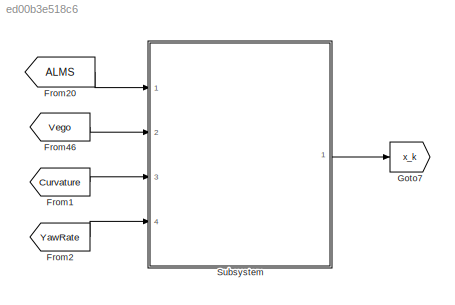
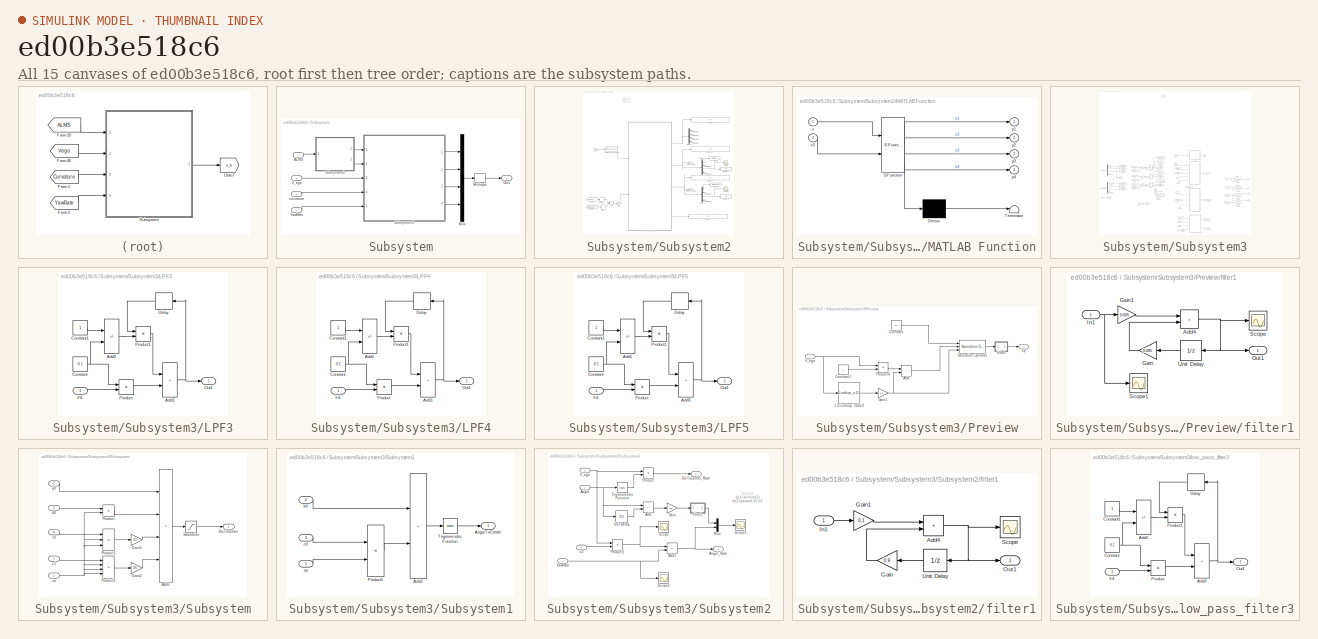
[diagram: thumbnail index - all 15 canvases of the model, root first then tree order]
MODEL slx_ed00b3e518c6
KIND model
CONFIG AbsTol = auto
CONFIG EnableMultiTasking = off
CONFIG FixedStep = auto
CONFIG MaxStep = auto
CONFIG MinStep = auto
CONFIG RelTol = 1e-3
CONFIG SampleTimeConstraint = Unconstrained
CONFIG SolverName = VariableStepAuto
CONFIG StartTime = 0.0
CONFIG StopTime = 10.0
BLOCK [From] From1
  GotoTag = Curvature
BLOCK [From] From2
  GotoTag = YawRate
BLOCK [From] From20
  GotoTag = ALMS
BLOCK [From] From46
  GotoTag = Vego
BLOCK [Goto] Goto7
  GotoTag = x_k
BLOCK [SubSystem] Subsystem
  Ports = [4, 1]
  RequestExecContextInheritance = off
BLOCK [Inport] Subsystem/ALMS
BLOCK [Mux] Subsystem/Mux
  DisplayOption = bar
  Ports = [4, 1]
BLOCK [Outport] Subsystem/Out1
BLOCK [Reshape] Subsystem/Reshape
  OutputDimensionality = Customize
  OutputDimensions = [4,1]
  Ports = [1, 1]
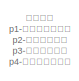
[diagram: Subsystem/Subsystem2 - part 1/2, top left region]
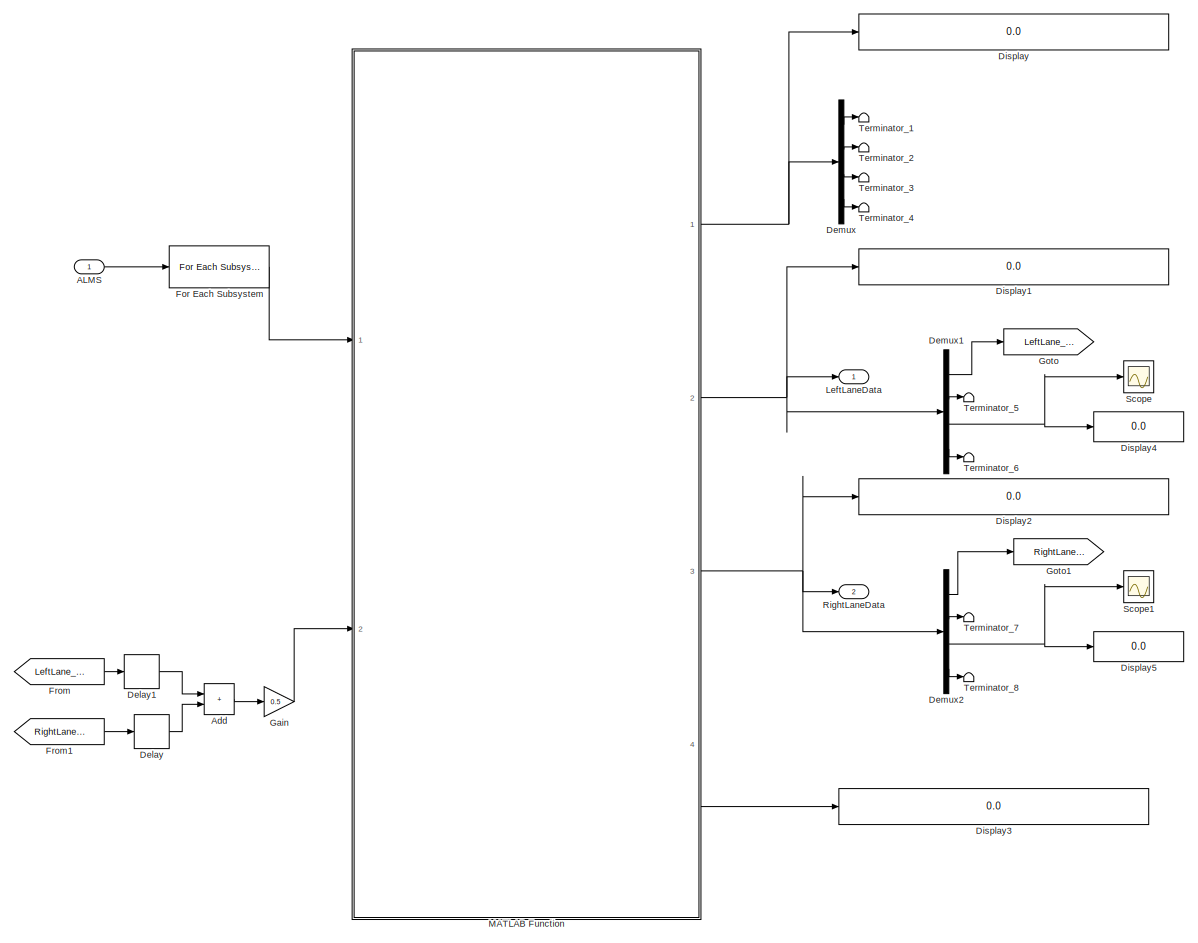
[diagram: Subsystem/Subsystem2 - part 2/2, most of the canvas]
BLOCK [SubSystem] Subsystem/Subsystem2
  Ports = [1, 2]
  RequestExecContextInheritance = off
BLOCK [Inport] Subsystem/Subsystem2/ALMS
  OutDataTypeStr = Bus: PRESCAN_ALMS_MESSAGE
BLOCK [Sum] Subsystem/Subsystem2/Add
  IconShape = rectangular
  Ports = [2, 1]
BLOCK [Delay] Subsystem/Subsystem2/Delay
  DelayLength = 1
  InputPortMap = u0
  Ports = [1, 1]
BLOCK [Delay] Subsystem/Subsystem2/Delay1
  DelayLength = 1
  InputPortMap = u0
  Ports = [1, 1]
BLOCK [Demux] Subsystem/Subsystem2/Demux
  Ports = [1, 4]
BLOCK [Demux] Subsystem/Subsystem2/Demux1
  Ports = [1, 4]
BLOCK [Demux] Subsystem/Subsystem2/Demux2
  Ports = [1, 4]
BLOCK [Display] Subsystem/Subsystem2/Display
  Decimation = 1
  Ports = [1]
BLOCK [Display] Subsystem/Subsystem2/Display1
  Decimation = 1
  Ports = [1]
BLOCK [Display] Subsystem/Subsystem2/Display2
  Decimation = 1
  Ports = [1]
BLOCK [Display] Subsystem/Subsystem2/Display3
  Decimation = 1
  Ports = [1]
BLOCK [Display] Subsystem/Subsystem2/Display4
  Decimation = 1
  Ports = [1]
BLOCK [Display] Subsystem/Subsystem2/Display5
  Decimation = 1
  Ports = [1]
BLOCK [Reference] Subsystem/Subsystem2/For Each Subsystem  REF=PreScanUsefulBlocks/ALMS XY Polynomial Plot/For Each
Subsystem
  Ports = [1, 1]
  SourceBlock = PreScanUsefulBlocks/ALMS XY Polynomial Plot/For Each\nSubsystem
  SourceType = SubSystem
BLOCK [From] Subsystem/Subsystem2/From
  GotoTag = LeftLane_c0
BLOCK [From] Subsystem/Subsystem2/From1
  GotoTag = RightLane_c0
BLOCK [Gain] Subsystem/Subsystem2/Gain
  Gain = 0.5
BLOCK [Goto] Subsystem/Subsystem2/Goto
  GotoTag = LeftLane_c0
BLOCK [Goto] Subsystem/Subsystem2/Goto1
  GotoTag = RightLane_c0
BLOCK [Outport] Subsystem/Subsystem2/LeftLaneData
  VectorParamsAs1DForOutWhenUnconnected = off
BLOCK [SubSystem] Subsystem/Subsystem2/MATLAB Function
  ErrorFcn = Stateflow.Translate.translate
  PermitHierarchicalResolution = ExplicitOnly
  Ports = [2, 4]
  RequestExecContextInheritance = off
  SFBlockType = MATLAB Function
  TreatAsAtomicUnit = on
BLOCK [Demux] Subsystem/Subsystem2/MATLAB Function/ Demux 
  Outputs = 1
  Ports = [1, 1]
BLOCK [S-Function] Subsystem/Subsystem2/MATLAB Function/ SFunction 
  EnableBusSupport = on
  FunctionName = sf_sfun
  PortCounts = [2 5]
  Ports = [2, 5]
  SFcnIsStateOwnerBlock = off
  SFunctionDeploymentMode = off
  Tag = Stateflow S-Function 19
BLOCK [Terminator] Subsystem/Subsystem2/MATLAB Function/ Terminator 
BLOCK [Inport] Subsystem/Subsystem2/MATLAB Function/c0
  Port = 2
BLOCK [Outport] Subsystem/Subsystem2/MATLAB Function/p1
  VectorParamsAs1DForOutWhenUnconnected = off
BLOCK [Outport] Subsystem/Subsystem2/MATLAB Function/p2
  Port = 2
  VectorParamsAs1DForOutWhenUnconnected = off
BLOCK [Outport] Subsystem/Subsystem2/MATLAB Function/p3
  Port = 3
  VectorParamsAs1DForOutWhenUnconnected = off
BLOCK [Outport] Subsystem/Subsystem2/MATLAB Function/p4
  Port = 4
  VectorParamsAs1DForOutWhenUnconnected = off
BLOCK [Inport] Subsystem/Subsystem2/MATLAB Function/u
BLOCK [Outport] Subsystem/Subsystem2/RightLaneData
  Port = 2
  VectorParamsAs1DForOutWhenUnconnected = off
BLOCK [Scope] Subsystem/Subsystem2/Scope
  Floating = off
  NumInputPorts = 1
  Ports = [1]
  ScopeSpecificationString = Simulink.scopes.TimeScopeBlockCfg('CurrentConfiguration', extmgr.ConfigurationSet(extmgr.Configuration('Core','General UI',true),extmgr.Configuration('Core','Source UI',true),extmgr.Configuration('Sources','WiredSimulink',true,'DataLoggingVariableName','ScopeData12'),extmgr.Configuration('Visuals','Time Domain',true,'SerializedDisplays',{struct('MinYLimReal','-0.22477','MaxYLimReal','2.02295','YLa...<+1423ch>
BLOCK [Scope] Subsystem/Subsystem2/Scope1
  Floating = off
  NumInputPorts = 1
  Ports = [1]
  ScopeSpecificationString = Simulink.scopes.TimeScopeBlockCfg('CurrentConfiguration', extmgr.ConfigurationSet(extmgr.Configuration('Core','General UI',true),extmgr.Configuration('Core','Source UI',true),extmgr.Configuration('Sources','WiredSimulink',true,'DataLoggingVariableName','ScopeData13'),extmgr.Configuration('Visuals','Time Domain',true,'SerializedDisplays',{struct('MinYLimReal','-1.98358','MaxYLimReal','0.2204','YLab...<+1391ch>
BLOCK [Terminator] Subsystem/Subsystem2/Terminator_1
BLOCK [Terminator] Subsystem/Subsystem2/Terminator_2
BLOCK [Terminator] Subsystem/Subsystem2/Terminator_3
BLOCK [Terminator] Subsystem/Subsystem2/Terminator_4
BLOCK [Terminator] Subsystem/Subsystem2/Terminator_5
BLOCK [Terminator] Subsystem/Subsystem2/Terminator_6
BLOCK [Terminator] Subsystem/Subsystem2/Terminator_7
BLOCK [Terminator] Subsystem/Subsystem2/Terminator_8
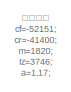
[diagram: Subsystem/Subsystem3 - part 1/4, top center region]
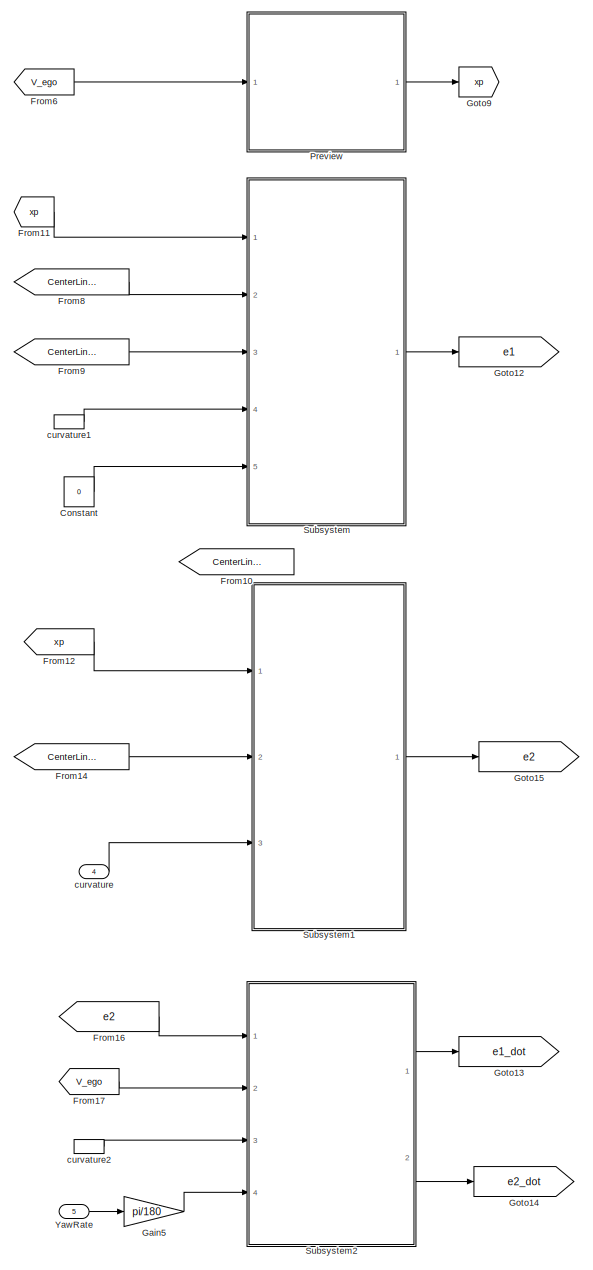
[diagram: Subsystem/Subsystem3 - part 2/4, bottom center region]
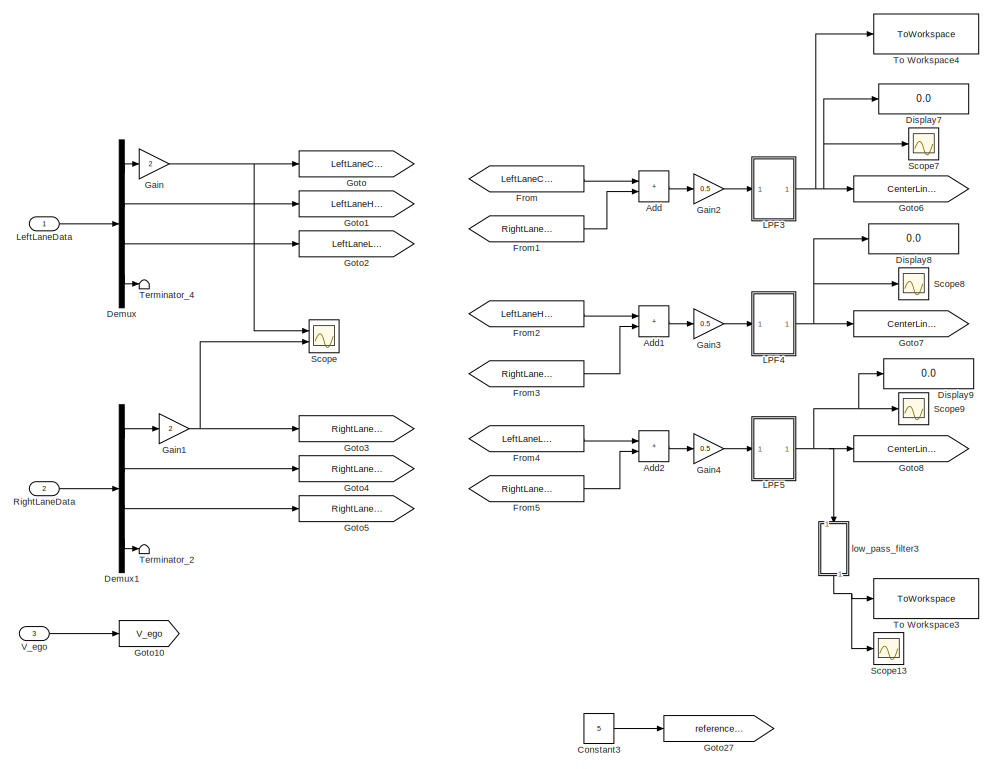
[diagram: Subsystem/Subsystem3 - part 3/4, middle left region]
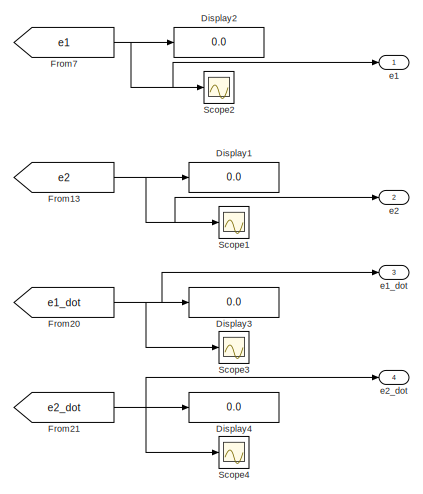
[diagram: Subsystem/Subsystem3 - part 4/4, bottom right region]
BLOCK [SubSystem] Subsystem/Subsystem3
  Ports = [5, 4]
  RequestExecContextInheritance = off
BLOCK [Sum] Subsystem/Subsystem3/Add
  IconShape = rectangular
  Ports = [2, 1]
BLOCK [Sum] Subsystem/Subsystem3/Add1
  IconShape = rectangular
  Ports = [2, 1]
BLOCK [Sum] Subsystem/Subsystem3/Add2
  IconShape = rectangular
  Ports = [2, 1]
BLOCK [Constant] Subsystem/Subsystem3/Constant
  Value = 0
BLOCK [Constant] Subsystem/Subsystem3/Constant3
  Value = 5
BLOCK [Demux] Subsystem/Subsystem3/Demux
  Ports = [1, 4]
BLOCK [Demux] Subsystem/Subsystem3/Demux1
  Ports = [1, 4]
BLOCK [Display] Subsystem/Subsystem3/Display1
  Decimation = 1
  Ports = [1]
BLOCK [Display] Subsystem/Subsystem3/Display2
  Decimation = 1
  Ports = [1]
BLOCK [Display] Subsystem/Subsystem3/Display3
  Decimation = 1
  Ports = [1]
BLOCK [Display] Subsystem/Subsystem3/Display4
  Decimation = 1
  Ports = [1]
BLOCK [Display] Subsystem/Subsystem3/Display7
  Decimation = 1
  Ports = [1]
BLOCK [Display] Subsystem/Subsystem3/Display8
  Decimation = 1
  Ports = [1]
BLOCK [Display] Subsystem/Subsystem3/Display9
  Decimation = 1
  Ports = [1]
BLOCK [From] Subsystem/Subsystem3/From
  GotoTag = LeftLaneCurvature
BLOCK [From] Subsystem/Subsystem3/From1
  GotoTag = RightLaneCurvature
BLOCK [From] Subsystem/Subsystem3/From10
  Commented = on
  GotoTag = CenterLineCurvature
  TagVisibility = global
BLOCK [From] Subsystem/Subsystem3/From11
  GotoTag = xp
BLOCK [From] Subsystem/Subsystem3/From12
  GotoTag = xp
BLOCK [From] Subsystem/Subsystem3/From13
  GotoTag = e2
BLOCK [From] Subsystem/Subsystem3/From14
  GotoTag = CenterLineHeading
BLOCK [From] Subsystem/Subsystem3/From16
  GotoTag = e2
BLOCK [From] Subsystem/Subsystem3/From17
  GotoTag = V_ego
BLOCK [From] Subsystem/Subsystem3/From2
  GotoTag = LeftLaneHeading
BLOCK [From] Subsystem/Subsystem3/From20
  GotoTag = e1_dot
BLOCK [From] Subsystem/Subsystem3/From21
  GotoTag = e2_dot
BLOCK [From] Subsystem/Subsystem3/From3
  GotoTag = RightLaneHeading
BLOCK [From] Subsystem/Subsystem3/From4
  GotoTag = LeftLaneLateralError
BLOCK [From] Subsystem/Subsystem3/From5
  GotoTag = RightLaneLateralError
BLOCK [From] Subsystem/Subsystem3/From6
  GotoTag = V_ego
BLOCK [From] Subsystem/Subsystem3/From7
  GotoTag = e1
BLOCK [From] Subsystem/Subsystem3/From8
  GotoTag = CenterLineLateralError
BLOCK [From] Subsystem/Subsystem3/From9
  GotoTag = CenterLineHeading
BLOCK [Gain] Subsystem/Subsystem3/Gain
  Gain = 2
BLOCK [Gain] Subsystem/Subsystem3/Gain1
  Gain = 2
BLOCK [Gain] Subsystem/Subsystem3/Gain2
  Gain = 0.5
BLOCK [Gain] Subsystem/Subsystem3/Gain3
  Gain = 0.5
BLOCK [Gain] Subsystem/Subsystem3/Gain4
  Gain = 0.5
BLOCK [Gain] Subsystem/Subsystem3/Gain5
  Gain = pi/180
BLOCK [Goto] Subsystem/Subsystem3/Goto
  GotoTag = LeftLaneCurvature
BLOCK [Goto] Subsystem/Subsystem3/Goto1
  GotoTag = LeftLaneHeading
BLOCK [Goto] Subsystem/Subsystem3/Goto10
  GotoTag = V_ego
BLOCK [Goto] Subsystem/Subsystem3/Goto12
  GotoTag = e1
BLOCK [Goto] Subsystem/Subsystem3/Goto13
  GotoTag = e1_dot
BLOCK [Goto] Subsystem/Subsystem3/Goto14
  GotoTag = e2_dot
BLOCK [Goto] Subsystem/Subsystem3/Goto15
  GotoTag = e2
BLOCK [Goto] Subsystem/Subsystem3/Goto2
  GotoTag = LeftLaneLateralError
BLOCK [Goto] Subsystem/Subsystem3/Goto27
  GotoTag = reference_velocity
  TagVisibility = global
BLOCK [Goto] Subsystem/Subsystem3/Goto3
  GotoTag = RightLaneCurvature
BLOCK [Goto] Subsystem/Subsystem3/Goto4
  GotoTag = RightLaneHeading
BLOCK [Goto] Subsystem/Subsystem3/Goto5
  GotoTag = RightLaneLateralError
BLOCK [Goto] Subsystem/Subsystem3/Goto6
  GotoTag = CenterLineCurvature
  TagVisibility = global
BLOCK [Goto] Subsystem/Subsystem3/Goto7
  GotoTag = CenterLineHeading
BLOCK [Goto] Subsystem/Subsystem3/Goto8
  GotoTag = CenterLineLateralError
BLOCK [Goto] Subsystem/Subsystem3/Goto9
  GotoTag = xp
BLOCK [SubSystem] Subsystem/Subsystem3/LPF3
  Ports = [1, 1]
  RequestExecContextInheritance = off
BLOCK [Sum] Subsystem/Subsystem3/LPF3/Add1
  IconShape = rectangular
  Inputs = +-
  Ports = [2, 1]
BLOCK [Sum] Subsystem/Subsystem3/LPF3/Add3
  IconShape = rectangular
  Ports = [2, 1]
BLOCK [Constant] Subsystem/Subsystem3/LPF3/Constant
  Value = 0.1
BLOCK [Constant] Subsystem/Subsystem3/LPF3/Constant1
BLOCK [Delay] Subsystem/Subsystem3/LPF3/Delay
  DelayLength = 1
  InputPortMap = u0
  Ports = [1, 1]
BLOCK [Inport] Subsystem/Subsystem3/LPF3/In1
BLOCK [Outport] Subsystem/Subsystem3/LPF3/Out1
  VectorParamsAs1DForOutWhenUnconnected = off
BLOCK [Product] Subsystem/Subsystem3/LPF3/Product
  Ports = [2, 1]
BLOCK [Product] Subsystem/Subsystem3/LPF3/Product1
  Ports = [2, 1]
BLOCK [SubSystem] Subsystem/Subsystem3/LPF4
  Ports = [1, 1]
  RequestExecContextInheritance = off
BLOCK [Sum] Subsystem/Subsystem3/LPF4/Add1
  IconShape = rectangular
  Inputs = +-
  Ports = [2, 1]
BLOCK [Sum] Subsystem/Subsystem3/LPF4/Add3
  IconShape = rectangular
  Ports = [2, 1]
BLOCK [Constant] Subsystem/Subsystem3/LPF4/Constant
  Value = 0.1
BLOCK [Constant] Subsystem/Subsystem3/LPF4/Constant1
BLOCK [Delay] Subsystem/Subsystem3/LPF4/Delay
  DelayLength = 1
  InputPortMap = u0
  Ports = [1, 1]
BLOCK [Inport] Subsystem/Subsystem3/LPF4/In1
BLOCK [Outport] Subsystem/Subsystem3/LPF4/Out1
  VectorParamsAs1DForOutWhenUnconnected = off
BLOCK [Product] Subsystem/Subsystem3/LPF4/Product
  Ports = [2, 1]
BLOCK [Product] Subsystem/Subsystem3/LPF4/Product1
  Ports = [2, 1]
BLOCK [SubSystem] Subsystem/Subsystem3/LPF5
  Ports = [1, 1]
  RequestExecContextInheritance = off
BLOCK [Sum] Subsystem/Subsystem3/LPF5/Add1
  IconShape = rectangular
  Inputs = +-
  Ports = [2, 1]
BLOCK [Sum] Subsystem/Subsystem3/LPF5/Add3
  IconShape = rectangular
  Ports = [2, 1]
BLOCK [Constant] Subsystem/Subsystem3/LPF5/Constant
  Value = 0.1
BLOCK [Constant] Subsystem/Subsystem3/LPF5/Constant1
BLOCK [Delay] Subsystem/Subsystem3/LPF5/Delay
  DelayLength = 1
  InputPortMap = u0
  Ports = [1, 1]
BLOCK [Inport] Subsystem/Subsystem3/LPF5/In1
BLOCK [Outport] Subsystem/Subsystem3/LPF5/Out1
  VectorParamsAs1DForOutWhenUnconnected = off
BLOCK [Product] Subsystem/Subsystem3/LPF5/Product
  Ports = [2, 1]
BLOCK [Product] Subsystem/Subsystem3/LPF5/Product1
  Ports = [2, 1]
BLOCK [Inport] Subsystem/Subsystem3/LeftLaneData
BLOCK [SubSystem] Subsystem/Subsystem3/Preview
  Ports = [1, 1]
  RequestExecContextInheritance = off
BLOCK [Lookup_n-D] Subsystem/Subsystem3/Preview/1-D Lookup Table2
  BreakpointsForDimension1 = [0,3,5,10,15,20,30,40,50]
  InputPortMap = u0
  InternalRulePriority = Speed
  NumberOfTableDimensions = 1
  Ports = [1, 1]
  RndMeth = Simplest
  Table = [6,6,7,8.5,10.5,12,14,15,15]
BLOCK [Sum] Subsystem/Subsystem3/Preview/Add
  IconShape = rectangular
  Ports = [2, 1]
BLOCK [Constant] Subsystem/Subsystem3/Preview/Constant
  Value = 30
BLOCK [Constant] Subsystem/Subsystem3/Preview/Constant1
BLOCK [Gain] Subsystem/Subsystem3/Preview/Gain1
  Gain = 0.2
BLOCK [Product] Subsystem/Subsystem3/Preview/Product4
  Ports = [2, 1]
BLOCK [Reference] Subsystem/Subsystem3/Preview/Saturation Dynamic  REF=simulink/Discontinuities/Saturation
Dynamic
  Ports = [3, 1]
  SourceBlock = simulink/Discontinuities/Saturation\nDynamic
  SourceProductBaseCode = SL
  SourceType = Saturation Dynamic
BLOCK [Inport] Subsystem/Subsystem3/Preview/V_ego
BLOCK [SubSystem] Subsystem/Subsystem3/Preview/filter1
  Ports = [1, 1]
  RequestExecContextInheritance = off
BLOCK [Sum] Subsystem/Subsystem3/Preview/filter1/Add4
  IconShape = rectangular
  Ports = [2, 1]
BLOCK [Gain] Subsystem/Subsystem3/Preview/filter1/Gain
  Gain = 0.995
BLOCK [Gain] Subsystem/Subsystem3/Preview/filter1/Gain1
  Gain = 0.005
BLOCK [Inport] Subsystem/Subsystem3/Preview/filter1/In1
BLOCK [Outport] Subsystem/Subsystem3/Preview/filter1/Out1
  VectorParamsAs1DForOutWhenUnconnected = off
BLOCK [Scope] Subsystem/Subsystem3/Preview/filter1/Scope
  Floating = off
  NumInputPorts = 1
  Ports = [1]
  ScopeSpecificationString = C++SS(StrPVP('Location','[1, 59, 1921, 1023]'),StrPVP('Open','off'),MxPVP('AxesTitles',54,'struct(''axes1'',''%<SignalLabel>'')'),MxPVP('ScopeGraphics',57,'struct(''FigureColor'',''[0.5 0.5 0.5]'',''AxesColor'',''[0 0 0]'',''AxesTickColor'',''[1 1 1]'',''LineColors'',''[1 1 0;1 0 1;0 1 1;1 0 0;0 1 0;0 0 1]'',''LineStyles'',''-|-|-|-|-|-'',''LineWidths'',''[0.5 0.5 0.5 0.5 0.5 0.5]'',''MarkerStyles...<+315ch>
BLOCK [Scope] Subsystem/Subsystem3/Preview/filter1/Scope1
  Floating = off
  NumInputPorts = 1
  Ports = [1]
  ScopeSpecificationString = C++SS(StrPVP('Location','[1, 59, 1921, 1023]'),StrPVP('Open','off'),MxPVP('AxesTitles',54,'struct(''axes1'',''%<SignalLabel>'')'),MxPVP('ScopeGraphics',57,'struct(''FigureColor'',''[0.5 0.5 0.5]'',''AxesColor'',''[0 0 0]'',''AxesTickColor'',''[1 1 1]'',''LineColors'',''[1 1 0;1 0 1;0 1 1;1 0 0;0 1 0;0 0 1]'',''LineStyles'',''-|-|-|-|-|-'',''LineWidths'',''[0.5 0.5 0.5 0.5 0.5 0.5]'',''MarkerStyles...<+316ch>
BLOCK [UnitDelay] Subsystem/Subsystem3/Preview/filter1/Unit Delay
  HasFrameUpgradeWarning = on
  InitialCondition = 30
  SampleTime = -1
BLOCK [Outport] Subsystem/Subsystem3/Preview/xp
  VectorParamsAs1DForOutWhenUnconnected = off
BLOCK [Inport] Subsystem/Subsystem3/RightLaneData
  Port = 2
BLOCK [Scope] Subsystem/Subsystem3/Scope
  Floating = off
  NumInputPorts = 2
  Ports = [2]
  ScopeSpecificationString = Simulink.scopes.TimeScopeBlockCfg('CurrentConfiguration', extmgr.ConfigurationSet(extmgr.Configuration('Core','General UI',true),extmgr.Configuration('Core','Source UI',true),extmgr.Configuration('Sources','WiredSimulink',true,'DataLoggingVariableName','ScopeData1'),extmgr.Configuration('Visuals','Time Domain',true,'SerializedDisplays',{struct('MinYLimReal','0.000409','MaxYLimReal','0.00049','YLab...<+1446ch>
BLOCK [Scope] Subsystem/Subsystem3/Scope1
  Floating = off
  NumInputPorts = 1
  Ports = [1]
  ScopeSpecificationString = Simulink.scopes.TimeScopeBlockCfg('CurrentConfiguration', extmgr.ConfigurationSet(extmgr.Configuration('Core','General UI',true),extmgr.Configuration('Core','Source UI',true),extmgr.Configuration('Sources','WiredSimulink',true,'DataLoggingVariableName','ScopeData1'),extmgr.Configuration('Visuals','Time Domain',true,'SerializedDisplays',{struct('MinYLimReal','-0.16111','MaxYLimReal','1.44481','YLab...<+1394ch>
BLOCK [Scope] Subsystem/Subsystem3/Scope13
  Floating = off
  NumInputPorts = 1
  Ports = [1]
  ScopeSpecificationString = Simulink.scopes.TimeScopeBlockCfg('CurrentConfiguration', extmgr.ConfigurationSet(extmgr.Configuration('Core','General UI',true),extmgr.Configuration('Core','Source UI',true),extmgr.Configuration('Sources','WiredSimulink',true,'DataLoggingVariableName','ScopeData1'),extmgr.Configuration('Visuals','Time Domain',true,'SerializedDisplays',{struct('MinYLimReal','-0.3319','MaxYLimReal','0.10658','YLabe...<+1450ch>
BLOCK [Scope] Subsystem/Subsystem3/Scope2
  Floating = off
  NumInputPorts = 1
  Ports = [1]
  ScopeSpecificationString = Simulink.scopes.TimeScopeBlockCfg('CurrentConfiguration', extmgr.ConfigurationSet(extmgr.Configuration('Core','General UI',true),extmgr.Configuration('Core','Source UI',true),extmgr.Configuration('Sources','WiredSimulink',true,'DataLoggingVariableName','ScopeData4'),extmgr.Configuration('Visuals','Time Domain',true,'SerializedDisplays',{struct('MinYLimReal','-0.43544','MaxYLimReal','3.93727','YLab...<+1393ch>
BLOCK [Scope] Subsystem/Subsystem3/Scope3
  Floating = off
  NumInputPorts = 1
  Ports = [1]
  ScopeSpecificationString = Simulink.scopes.TimeScopeBlockCfg('CurrentConfiguration', extmgr.ConfigurationSet(extmgr.Configuration('Core','General UI',true),extmgr.Configuration('Core','Source UI',true),extmgr.Configuration('Sources','WiredSimulink',true,'DataLoggingVariableName','ScopeData2'),extmgr.Configuration('Visuals','Time Domain',true,'SerializedDisplays',{struct('MinYLimReal','-0.58339','MaxYLimReal','5.22479','YLab...<+1396ch>
BLOCK [Scope] Subsystem/Subsystem3/Scope4
  Floating = off
  NumInputPorts = 1
  Ports = [1]
  ScopeSpecificationString = Simulink.scopes.TimeScopeBlockCfg('CurrentConfiguration', extmgr.ConfigurationSet(extmgr.Configuration('Core','General UI',true),extmgr.Configuration('Core','Source UI',true),extmgr.Configuration('Sources','WiredSimulink',true,'DataLoggingVariableName','ScopeData3'),extmgr.Configuration('Visuals','Time Domain',true,'SerializedDisplays',{struct('MinYLimReal','-0.10722','MaxYLimReal','0.01151','YLab...<+1396ch>
BLOCK [Scope] Subsystem/Subsystem3/Scope7
  Floating = off
  NumInputPorts = 1
  Ports = [1]
  ScopeSpecificationString = Simulink.scopes.TimeScopeBlockCfg('CurrentConfiguration', extmgr.ConfigurationSet(extmgr.Configuration('Core','General UI',true),extmgr.Configuration('Core','Source UI',true),extmgr.Configuration('Sources','WiredSimulink',true,'DataLoggingVariableName','ScopeData9'),extmgr.Configuration('Visuals','Time Domain',true,'SerializedDisplays',{struct('MinYLimReal','-0.00006','MaxYLimReal','0.00053','YLab...<+1407ch>
BLOCK [Scope] Subsystem/Subsystem3/Scope8
  Floating = off
  NumInputPorts = 1
  Ports = [1]
  ScopeSpecificationString = Simulink.scopes.TimeScopeBlockCfg('CurrentConfiguration', extmgr.ConfigurationSet(extmgr.Configuration('Core','General UI',true),extmgr.Configuration('Core','Source UI',true),extmgr.Configuration('Sources','WiredSimulink',true,'DataLoggingVariableName','ScopeData10'),extmgr.Configuration('Visuals','Time Domain',true,'SerializedDisplays',{struct('MinYLimReal','-0.00403','MaxYLimReal','0.00045','YLa...<+1389ch>
BLOCK [Scope] Subsystem/Subsystem3/Scope9
  Floating = off
  NumInputPorts = 1
  Ports = [1]
  ScopeSpecificationString = Simulink.scopes.TimeScopeBlockCfg('CurrentConfiguration', extmgr.ConfigurationSet(extmgr.Configuration('Core','General UI',true),extmgr.Configuration('Core','Source UI',true),extmgr.Configuration('Sources','WiredSimulink',true,'DataLoggingVariableName','ScopeData11'),extmgr.Configuration('Visuals','Time Domain',true,'SerializedDisplays',{struct('MinYLimReal','-44.9859','MaxYLimReal','8.18613','YLa...<+1389ch>
BLOCK [SubSystem] Subsystem/Subsystem3/Subsystem
  Ports = [5, 1]
  RequestExecContextInheritance = off
BLOCK [Sum] Subsystem/Subsystem3/Subsystem/Add2
  IconShape = rectangular
  Inputs = ++++
  Ports = [4, 1]
BLOCK [Outport] Subsystem/Subsystem3/Subsystem/DisToCenter
  VectorParamsAs1DForOutWhenUnconnected = off
BLOCK [Gain] Subsystem/Subsystem3/Subsystem/Gain1
  Gain = 1/2
BLOCK [Gain] Subsystem/Subsystem3/Subsystem/Gain2
  Gain = 1/6
BLOCK [Product] Subsystem/Subsystem3/Subsystem/Product
  Ports = [2, 1]
BLOCK [Product] Subsystem/Subsystem3/Subsystem/Product1
  Inputs = 3
  Ports = [3, 1]
BLOCK [Product] Subsystem/Subsystem3/Subsystem/Product2
  Inputs = 4
  Ports = [4, 1]
BLOCK [Saturate] Subsystem/Subsystem3/Subsystem/Saturation
  LowerLimit = -3.5
  UpperLimit = 3.5
BLOCK [Inport] Subsystem/Subsystem3/Subsystem/c0
  Port = 4
BLOCK [Inport] Subsystem/Subsystem3/Subsystem/c1
  Port = 5
BLOCK [Inport] Subsystem/Subsystem3/Subsystem/k0
  Port = 3
BLOCK [Inport] Subsystem/Subsystem3/Subsystem/xp
BLOCK [Inport] Subsystem/Subsystem3/Subsystem/y0
  Port = 2
BLOCK [SubSystem] Subsystem/Subsystem3/Subsystem1
  Ports = [3, 1]
  RequestExecContextInheritance = off
BLOCK [Sum] Subsystem/Subsystem3/Subsystem1/Add2
  IconShape = rectangular
  Ports = [2, 1]
BLOCK [Outport] Subsystem/Subsystem3/Subsystem1/AngleToCenter
  VectorParamsAs1DForOutWhenUnconnected = off
BLOCK [Product] Subsystem/Subsystem3/Subsystem1/Product1
  Ports = [2, 1]
BLOCK [Trigonometry] Subsystem/Subsystem3/Subsystem1/Trigonometric Function
  Operator = atan
  Ports = [1, 1]
BLOCK [Inport] Subsystem/Subsystem3/Subsystem1/c0
  Port = 3
BLOCK [Inport] Subsystem/Subsystem3/Subsystem1/k0
  Port = 2
BLOCK [Inport] Subsystem/Subsystem3/Subsystem1/xp
BLOCK [SubSystem] Subsystem/Subsystem3/Subsystem2
  NameLocation = top
  Ports = [4, 2]
  RequestExecContextInheritance = off
BLOCK [Sum] Subsystem/Subsystem3/Subsystem2/Add
  IconShape = rectangular
  Inputs = +-
  Ports = [2, 1]
BLOCK [Sum] Subsystem/Subsystem3/Subsystem2/Add1
  IconShape = rectangular
  Inputs = -+
  Ports = [2, 1]
BLOCK [Outport] Subsystem/Subsystem3/Subsystem2/Angel_Rate
  Port = 2
  VectorParamsAs1DForOutWhenUnconnected = off
BLOCK [Inport] Subsystem/Subsystem3/Subsystem2/Angle
BLOCK [Outport] Subsystem/Subsystem3/Subsystem2/DisToCenter_Rate
  VectorParamsAs1DForOutWhenUnconnected = off
BLOCK [Gain] Subsystem/Subsystem3/Subsystem2/Gain
  Gain = 100
BLOCK [Mux] Subsystem/Subsystem3/Subsystem2/Mux
  DisplayOption = bar
  Inputs = 2
  Ports = [2, 1]
BLOCK [Product] Subsystem/Subsystem3/Subsystem2/Product
  Ports = [2, 1]
BLOCK [Product] Subsystem/Subsystem3/Subsystem2/Product1
  Ports = [2, 1]
BLOCK [Scope] Subsystem/Subsystem3/Subsystem2/Scope
  Floating = off
  NumInputPorts = 1
  Ports = [1]
  ScopeSpecificationString = Simulink.scopes.TimeScopeBlockCfg('CurrentConfiguration', extmgr.ConfigurationSet(extmgr.Configuration('Core','General UI',true),extmgr.Configuration('Core','Source UI',true),extmgr.Configuration('Sources','WiredSimulink',true,'DataLoggingVariableName','ScopeData3'),extmgr.Configuration('Visuals','Time Domain',true,'SerializedDisplays',{struct('MinYLimReal','-0.0000000000000000028','MaxYLimReal','...<+1533ch>
BLOCK [Scope] Subsystem/Subsystem3/Subsystem2/Scope1
  Floating = off
  NumInputPorts = 1
  Ports = [1]
  ScopeSpecificationString = Simulink.scopes.TimeScopeBlockCfg('CurrentConfiguration', extmgr.ConfigurationSet(extmgr.Configuration('Core','General UI',true),extmgr.Configuration('Core','Source UI',true),extmgr.Configuration('Sources','WiredSimulink',true,'DataLoggingVariableName','ScopeData134','DataLoggingSaveFormat','StructureWithTime','DataLoggingDecimation','1','DataLoggingDecimateData',true),extmgr.Configuration('Visual...<+1749ch>
BLOCK [Scope] Subsystem/Subsystem3/Subsystem2/Scope2
  Floating = off
  NumInputPorts = 1
  Ports = [1]
  ScopeSpecificationString = Simulink.scopes.TimeScopeBlockCfg('CurrentConfiguration', extmgr.ConfigurationSet(extmgr.Configuration('Core','General UI',true),extmgr.Configuration('Core','Source UI',true),extmgr.Configuration('Sources','WiredSimulink',true,'DataLoggingVariableName','ScopeData4'),extmgr.Configuration('Visuals','Time Domain',true,'SerializedDisplays',{struct('MinYLimReal','-0.00164','MaxYLimReal','0.00309','YLab...<+1418ch>
BLOCK [Trigonometry] Subsystem/Subsystem3/Subsystem2/Trigonometric Function
  Ports = [1, 1]
BLOCK [UnitDelay] Subsystem/Subsystem3/Subsystem2/Unit Delay
  HasFrameUpgradeWarning = on
  SampleTime = -1
BLOCK [Inport] Subsystem/Subsystem3/Subsystem2/V_ego 
  Port = 2
BLOCK [Inport] Subsystem/Subsystem3/Subsystem2/YawRate
  Port = 4
BLOCK [Inport] Subsystem/Subsystem3/Subsystem2/c0
  Port = 3
BLOCK [SubSystem] Subsystem/Subsystem3/Subsystem2/filter1
  Ports = [1, 1]
  RequestExecContextInheritance = off
BLOCK [Sum] Subsystem/Subsystem3/Subsystem2/filter1/Add4
  IconShape = rectangular
  Ports = [2, 1]
BLOCK [Gain] Subsystem/Subsystem3/Subsystem2/filter1/Gain
  Gain = 0.9
BLOCK [Gain] Subsystem/Subsystem3/Subsystem2/filter1/Gain1
  Gain = 0.1
BLOCK [Inport] Subsystem/Subsystem3/Subsystem2/filter1/In1
BLOCK [Outport] Subsystem/Subsystem3/Subsystem2/filter1/Out1
  VectorParamsAs1DForOutWhenUnconnected = off
BLOCK [Scope] Subsystem/Subsystem3/Subsystem2/filter1/Scope
  Floating = off
  NumInputPorts = 1
  Ports = [1]
  ScopeSpecificationString = C++SS(StrPVP('Location','[1, 59, 1921, 1023]'),StrPVP('Open','off'),MxPVP('AxesTitles',54,'struct(''axes1'',''%<SignalLabel>'')'),MxPVP('ScopeGraphics',57,'struct(''FigureColor'',''[0.5 0.5 0.5]'',''AxesColor'',''[0 0 0]'',''AxesTickColor'',''[1 1 1]'',''LineColors'',''[1 1 0;1 0 1;0 1 1;1 0 0;0 1 0;0 0 1]'',''LineStyles'',''-|-|-|-|-|-'',''LineWidths'',''[0.5 0.5 0.5 0.5 0.5 0.5]'',''MarkerStyles...<+315ch>
BLOCK [UnitDelay] Subsystem/Subsystem3/Subsystem2/filter1/Unit Delay
  HasFrameUpgradeWarning = on
  SampleTime = -1
BLOCK [Terminator] Subsystem/Subsystem3/Terminator_2
BLOCK [Terminator] Subsystem/Subsystem3/Terminator_4
BLOCK [ToWorkspace] Subsystem/Subsystem3/To Workspace3
  FixptAsFi = on
  MaxDataPoints = inf
  Ports = [1]
  SampleTime = -1
  Save2DSignal = 2-D array (concatenate along first dimension)
  VariableName = simulation_Lateral_error
BLOCK [ToWorkspace] Subsystem/Subsystem3/To Workspace4
  FixptAsFi = on
  MaxDataPoints = inf
  Ports = [1]
  SampleTime = -1
  Save2DSignal = 2-D array (concatenate along first dimension)
  VariableName = simulation_Curvature
BLOCK [Inport] Subsystem/Subsystem3/V_ego
  Port = 3
BLOCK [Inport] Subsystem/Subsystem3/YawRate
  Port = 5
BLOCK [Inport] Subsystem/Subsystem3/curvature
  Port = 4
BLOCK [InportShadow] Subsystem/Subsystem3/curvature1
  Port = 4
BLOCK [InportShadow] Subsystem/Subsystem3/curvature2
  Port = 4
BLOCK [Outport] Subsystem/Subsystem3/e1
BLOCK [Outport] Subsystem/Subsystem3/e1_dot
  Port = 3
BLOCK [Outport] Subsystem/Subsystem3/e2
  Port = 2
BLOCK [Outport] Subsystem/Subsystem3/e2_dot
  Port = 4
BLOCK [SubSystem] Subsystem/Subsystem3/low_pass_filter3
  NameLocation = left
  Ports = [1, 1]
  RequestExecContextInheritance = off
BLOCK [Sum] Subsystem/Subsystem3/low_pass_filter3/Add1
  IconShape = rectangular
  Inputs = +-
  Ports = [2, 1]
BLOCK [Sum] Subsystem/Subsystem3/low_pass_filter3/Add3
  IconShape = rectangular
  Ports = [2, 1]
BLOCK [Constant] Subsystem/Subsystem3/low_pass_filter3/Constant
  Value = 0.1
BLOCK [Constant] Subsystem/Subsystem3/low_pass_filter3/Constant1
BLOCK [Delay] Subsystem/Subsystem3/low_pass_filter3/Delay
  DelayLength = 1
  InputPortMap = u0
  Ports = [1, 1]
BLOCK [Inport] Subsystem/Subsystem3/low_pass_filter3/In1
BLOCK [Outport] Subsystem/Subsystem3/low_pass_filter3/Out1
  VectorParamsAs1DForOutWhenUnconnected = off
BLOCK [Product] Subsystem/Subsystem3/low_pass_filter3/Product
  Ports = [2, 1]
BLOCK [Product] Subsystem/Subsystem3/low_pass_filter3/Product1
  Ports = [2, 1]
BLOCK [Inport] Subsystem/V_ego
  Port = 2
BLOCK [Inport] Subsystem/YawRate
  Port = 4
BLOCK [Inport] Subsystem/curvature
  Port = 3
ANNOTATION Subsystem/Subsystem2: 左正右负 p1-左左车道线数据 p2-左车道线数据 p3-右车道线数据 p4-右右车道线数据
ANNOTATION Subsystem/Subsystem3: 车辆参数 cf=-52151; cr=-41400; m=1820; Iz=3746; a=1.17; b=1.77;
ANNOTATION Subsystem/Subsystem3/Subsystem2: 车辆动力学： de1=Vx*sin(e2) de2=yawrate-Vx*c0
LINE From1:1 -> Subsystem:3
LINE From20:1 -> Subsystem:1
LINE From2:1 -> Subsystem:4
LINE From46:1 -> Subsystem:2
LINE Subsystem/ALMS:1 -> Subsystem/Subsystem2:1
LINE Subsystem/Mux:1 -> Subsystem/Reshape:1
LINE Subsystem/Reshape:1 -> Subsystem/Out1:1
LINE Subsystem/Subsystem2/ALMS:1 -> Subsystem/Subsystem2/For Each Subsystem:1
LINE Subsystem/Subsystem2/Add:1 -> Subsystem/Subsystem2/Gain:1
LINE Subsystem/Subsystem2/Delay1:1 -> Subsystem/Subsystem2/Add:1
LINE Subsystem/Subsystem2/Delay:1 -> Subsystem/Subsystem2/Add:2
LINE Subsystem/Subsystem2/Demux1:1 -> Subsystem/Subsystem2/Goto:1
LINE Subsystem/Subsystem2/Demux1:2 -> Subsystem/Subsystem2/Terminator_5:1
NET Subsystem/Subsystem2/Demux1:3 -> Subsystem/Subsystem2/Display4:1, Subsystem/Subsystem2/Scope:1
LINE Subsystem/Subsystem2/Demux1:4 -> Subsystem/Subsystem2/Terminator_6:1
LINE Subsystem/Subsystem2/Demux2:1 -> Subsystem/Subsystem2/Goto1:1
LINE Subsystem/Subsystem2/Demux2:2 -> Subsystem/Subsystem2/Terminator_7:1
NET Subsystem/Subsystem2/Demux2:3 -> Subsystem/Subsystem2/Display5:1, Subsystem/Subsystem2/Scope1:1
LINE Subsystem/Subsystem2/Demux2:4 -> Subsystem/Subsystem2/Terminator_8:1
LINE Subsystem/Subsystem2/Demux:1 -> Subsystem/Subsystem2/Terminator_1:1
LINE Subsystem/Subsystem2/Demux:2 -> Subsystem/Subsystem2/Terminator_2:1
LINE Subsystem/Subsystem2/Demux:3 -> Subsystem/Subsystem2/Terminator_3:1
LINE Subsystem/Subsystem2/Demux:4 -> Subsystem/Subsystem2/Terminator_4:1
LINE Subsystem/Subsystem2/For Each Subsystem:1 -> Subsystem/Subsystem2/MATLAB Function:1
LINE Subsystem/Subsystem2/From1:1 -> Subsystem/Subsystem2/Delay:1
LINE Subsystem/Subsystem2/From:1 -> Subsystem/Subsystem2/Delay1:1
LINE Subsystem/Subsystem2/Gain:1 -> Subsystem/Subsystem2/MATLAB Function:2
NET Subsystem/Subsystem2/MATLAB Function:1 -> Subsystem/Subsystem2/Demux:1, Subsystem/Subsystem2/Display:1
NET Subsystem/Subsystem2/MATLAB Function:2 -> Subsystem/Subsystem2/Demux1:1, Subsystem/Subsystem2/Display1:1, Subsystem/Subsystem2/LeftLaneData:1
NET Subsystem/Subsystem2/MATLAB Function:3 -> Subsystem/Subsystem2/Demux2:1, Subsystem/Subsystem2/Display2:1, Subsystem/Subsystem2/RightLaneData:1
LINE Subsystem/Subsystem2/MATLAB Function:4 -> Subsystem/Subsystem2/Display3:1
LINE Subsystem/Subsystem2:1 -> Subsystem/Subsystem3:1
LINE Subsystem/Subsystem2:2 -> Subsystem/Subsystem3:2
LINE Subsystem/Subsystem3/Add1:1 -> Subsystem/Subsystem3/Gain3:1
LINE Subsystem/Subsystem3/Add2:1 -> Subsystem/Subsystem3/Gain4:1
LINE Subsystem/Subsystem3/Add:1 -> Subsystem/Subsystem3/Gain2:1
LINE Subsystem/Subsystem3/Constant3:1 -> Subsystem/Subsystem3/Goto27:1
LINE Subsystem/Subsystem3/Constant:1 -> Subsystem/Subsystem3/Subsystem:5
LINE Subsystem/Subsystem3/Demux1:1 -> Subsystem/Subsystem3/Gain1:1
LINE Subsystem/Subsystem3/Demux1:2 -> Subsystem/Subsystem3/Goto4:1
LINE Subsystem/Subsystem3/Demux1:3 -> Subsystem/Subsystem3/Goto5:1
LINE Subsystem/Subsystem3/Demux1:4 -> Subsystem/Subsystem3/Terminator_2:1
LINE Subsystem/Subsystem3/Demux:1 -> Subsystem/Subsystem3/Gain:1
LINE Subsystem/Subsystem3/Demux:2 -> Subsystem/Subsystem3/Goto1:1
LINE Subsystem/Subsystem3/Demux:3 -> Subsystem/Subsystem3/Goto2:1
LINE Subsystem/Subsystem3/Demux:4 -> Subsystem/Subsystem3/Terminator_4:1
LINE Subsystem/Subsystem3/From11:1 -> Subsystem/Subsystem3/Subsystem:1
LINE Subsystem/Subsystem3/From12:1 -> Subsystem/Subsystem3/Subsystem1:1
NET Subsystem/Subsystem3/From13:1 -> Subsystem/Subsystem3/Display1:1, Subsystem/Subsystem3/Scope1:1, Subsystem/Subsystem3/e2:1
LINE Subsystem/Subsystem3/From14:1 -> Subsystem/Subsystem3/Subsystem1:2
LINE Subsystem/Subsystem3/From16:1 -> Subsystem/Subsystem3/Subsystem2:1
LINE Subsystem/Subsystem3/From17:1 -> Subsystem/Subsystem3/Subsystem2:2
LINE Subsystem/Subsystem3/From1:1 -> Subsystem/Subsystem3/Add:2
NET Subsystem/Subsystem3/From20:1 -> Subsystem/Subsystem3/Display3:1, Subsystem/Subsystem3/Scope3:1, Subsystem/Subsystem3/e1_dot:1
NET Subsystem/Subsystem3/From21:1 -> Subsystem/Subsystem3/Display4:1, Subsystem/Subsystem3/Scope4:1, Subsystem/Subsystem3/e2_dot:1
LINE Subsystem/Subsystem3/From2:1 -> Subsystem/Subsystem3/Add1:1
LINE Subsystem/Subsystem3/From3:1 -> Subsystem/Subsystem3/Add1:2
LINE Subsystem/Subsystem3/From4:1 -> Subsystem/Subsystem3/Add2:1
LINE Subsystem/Subsystem3/From5:1 -> Subsystem/Subsystem3/Add2:2
LINE Subsystem/Subsystem3/From6:1 -> Subsystem/Subsystem3/Preview:1
NET Subsystem/Subsystem3/From7:1 -> Subsystem/Subsystem3/Display2:1, Subsystem/Subsystem3/Scope2:1, Subsystem/Subsystem3/e1:1
LINE Subsystem/Subsystem3/From8:1 -> Subsystem/Subsystem3/Subsystem:2
LINE Subsystem/Subsystem3/From9:1 -> Subsystem/Subsystem3/Subsystem:3
LINE Subsystem/Subsystem3/From:1 -> Subsystem/Subsystem3/Add:1
NET Subsystem/Subsystem3/Gain1:1 -> Subsystem/Subsystem3/Goto3:1, Subsystem/Subsystem3/Scope:2
LINE Subsystem/Subsystem3/Gain2:1 -> Subsystem/Subsystem3/LPF3:1
LINE Subsystem/Subsystem3/Gain3:1 -> Subsystem/Subsystem3/LPF4:1
LINE Subsystem/Subsystem3/Gain4:1 -> Subsystem/Subsystem3/LPF5:1
LINE Subsystem/Subsystem3/Gain5:1 -> Subsystem/Subsystem3/Subsystem2:4
NET Subsystem/Subsystem3/Gain:1 -> Subsystem/Subsystem3/Goto:1, Subsystem/Subsystem3/Scope:1
LINE Subsystem/Subsystem3/LPF3/Add1:1 -> Subsystem/Subsystem3/LPF3/Product1:2
NET Subsystem/Subsystem3/LPF3/Add3:1 -> Subsystem/Subsystem3/LPF3/Delay:1, Subsystem/Subsystem3/LPF3/Out1:1
LINE Subsystem/Subsystem3/LPF3/Constant1:1 -> Subsystem/Subsystem3/LPF3/Add1:1
NET Subsystem/Subsystem3/LPF3/Constant:1 -> Subsystem/Subsystem3/LPF3/Add1:2, Subsystem/Subsystem3/LPF3/Product:1
LINE Subsystem/Subsystem3/LPF3/Delay:1 -> Subsystem/Subsystem3/LPF3/Product1:1
LINE Subsystem/Subsystem3/LPF3/In1:1 -> Subsystem/Subsystem3/LPF3/Product:2
LINE Subsystem/Subsystem3/LPF3/Product1:1 -> Subsystem/Subsystem3/LPF3/Add3:1
LINE Subsystem/Subsystem3/LPF3/Product:1 -> Subsystem/Subsystem3/LPF3/Add3:2
NET Subsystem/Subsystem3/LPF3:1 -> Subsystem/Subsystem3/Display7:1, Subsystem/Subsystem3/Goto6:1, Subsystem/Subsystem3/Scope7:1, Subsystem/Subsystem3/To Workspace4:1
LINE Subsystem/Subsystem3/LPF4/Add1:1 -> Subsystem/Subsystem3/LPF4/Product1:2
NET Subsystem/Subsystem3/LPF4/Add3:1 -> Subsystem/Subsystem3/LPF4/Delay:1, Subsystem/Subsystem3/LPF4/Out1:1
LINE Subsystem/Subsystem3/LPF4/Constant1:1 -> Subsystem/Subsystem3/LPF4/Add1:1
NET Subsystem/Subsystem3/LPF4/Constant:1 -> Subsystem/Subsystem3/LPF4/Add1:2, Subsystem/Subsystem3/LPF4/Product:1
LINE Subsystem/Subsystem3/LPF4/Delay:1 -> Subsystem/Subsystem3/LPF4/Product1:1
LINE Subsystem/Subsystem3/LPF4/In1:1 -> Subsystem/Subsystem3/LPF4/Product:2
LINE Subsystem/Subsystem3/LPF4/Product1:1 -> Subsystem/Subsystem3/LPF4/Add3:1
LINE Subsystem/Subsystem3/LPF4/Product:1 -> Subsystem/Subsystem3/LPF4/Add3:2
NET Subsystem/Subsystem3/LPF4:1 -> Subsystem/Subsystem3/Display8:1, Subsystem/Subsystem3/Goto7:1, Subsystem/Subsystem3/Scope8:1
LINE Subsystem/Subsystem3/LPF5/Add1:1 -> Subsystem/Subsystem3/LPF5/Product1:2
NET Subsystem/Subsystem3/LPF5/Add3:1 -> Subsystem/Subsystem3/LPF5/Delay:1, Subsystem/Subsystem3/LPF5/Out1:1
LINE Subsystem/Subsystem3/LPF5/Constant1:1 -> Subsystem/Subsystem3/LPF5/Add1:1
NET Subsystem/Subsystem3/LPF5/Constant:1 -> Subsystem/Subsystem3/LPF5/Add1:2, Subsystem/Subsystem3/LPF5/Product:1
LINE Subsystem/Subsystem3/LPF5/Delay:1 -> Subsystem/Subsystem3/LPF5/Product1:1
LINE Subsystem/Subsystem3/LPF5/In1:1 -> Subsystem/Subsystem3/LPF5/Product:2
LINE Subsystem/Subsystem3/LPF5/Product1:1 -> Subsystem/Subsystem3/LPF5/Add3:1
LINE Subsystem/Subsystem3/LPF5/Product:1 -> Subsystem/Subsystem3/LPF5/Add3:2
NET Subsystem/Subsystem3/LPF5:1 -> Subsystem/Subsystem3/Display9:1, Subsystem/Subsystem3/Goto8:1, Subsystem/Subsystem3/Scope9:1, Subsystem/Subsystem3/low_pass_filter3:1
LINE Subsystem/Subsystem3/LeftLaneData:1 -> Subsystem/Subsystem3/Demux:1
LINE Subsystem/Subsystem3/Preview/1-D Lookup Table2:1 -> Subsystem/Subsystem3/Preview/Gain1:1
LINE Subsystem/Subsystem3/Preview/Add:1 -> Subsystem/Subsystem3/Preview/Saturation Dynamic:2
LINE Subsystem/Subsystem3/Preview/Constant1:1 -> Subsystem/Subsystem3/Preview/Product4:2
LINE Subsystem/Subsystem3/Preview/Constant:1 -> Subsystem/Subsystem3/Preview/Saturation Dynamic:1
NET Subsystem/Subsystem3/Preview/Gain1:1 -> Subsystem/Subsystem3/Preview/Add:2, Subsystem/Subsystem3/Preview/Saturation Dynamic:3
LINE Subsystem/Subsystem3/Preview/Product4:1 -> Subsystem/Subsystem3/Preview/Add:1
LINE Subsystem/Subsystem3/Preview/Saturation Dynamic:1 -> Subsystem/Subsystem3/Preview/filter1:1
NET Subsystem/Subsystem3/Preview/V_ego:1 -> Subsystem/Subsystem3/Preview/1-D Lookup Table2:1, Subsystem/Subsystem3/Preview/Product4:1
NET Subsystem/Subsystem3/Preview/filter1/Add4:1 -> Subsystem/Subsystem3/Preview/filter1/Out1:1, Subsystem/Subsystem3/Preview/filter1/Scope:1, Subsystem/Subsystem3/Preview/filter1/Unit Delay:1
LINE Subsystem/Subsystem3/Preview/filter1/Gain1:1 -> Subsystem/Subsystem3/Preview/filter1/Add4:1
LINE Subsystem/Subsystem3/Preview/filter1/Gain:1 -> Subsystem/Subsystem3/Preview/filter1/Add4:2
NET Subsystem/Subsystem3/Preview/filter1/In1:1 -> Subsystem/Subsystem3/Preview/filter1/Gain1:1, Subsystem/Subsystem3/Preview/filter1/Scope1:1
LINE Subsystem/Subsystem3/Preview/filter1/Unit Delay:1 -> Subsystem/Subsystem3/Preview/filter1/Gain:1
LINE Subsystem/Subsystem3/Preview/filter1:1 -> Subsystem/Subsystem3/Preview/xp:1
LINE Subsystem/Subsystem3/Preview:1 -> Subsystem/Subsystem3/Goto9:1
LINE Subsystem/Subsystem3/RightLaneData:1 -> Subsystem/Subsystem3/Demux1:1
LINE Subsystem/Subsystem3/Subsystem/Add2:1 -> Subsystem/Subsystem3/Subsystem/Saturation:1
LINE Subsystem/Subsystem3/Subsystem/Gain1:1 -> Subsystem/Subsystem3/Subsystem/Add2:3
LINE Subsystem/Subsystem3/Subsystem/Gain2:1 -> Subsystem/Subsystem3/Subsystem/Add2:4
LINE Subsystem/Subsystem3/Subsystem/Product1:1 -> Subsystem/Subsystem3/Subsystem/Gain1:1
LINE Subsystem/Subsystem3/Subsystem/Product2:1 -> Subsystem/Subsystem3/Subsystem/Gain2:1
LINE Subsystem/Subsystem3/Subsystem/Product:1 -> Subsystem/Subsystem3/Subsystem/Add2:2
LINE Subsystem/Subsystem3/Subsystem/Saturation:1 -> Subsystem/Subsystem3/Subsystem/DisToCenter:1
LINE Subsystem/Subsystem3/Subsystem/c0:1 -> Subsystem/Subsystem3/Subsystem/Product1:1
LINE Subsystem/Subsystem3/Subsystem/c1:1 -> Subsystem/Subsystem3/Subsystem/Product2:1
LINE Subsystem/Subsystem3/Subsystem/k0:1 -> Subsystem/Subsystem3/Subsystem/Product:1
NET Subsystem/Subsystem3/Subsystem/xp:1 -> Subsystem/Subsystem3/Subsystem/Product1:2, Subsystem/Subsystem3/Subsystem/Product1:3, Subsystem/Subsystem3/Subsystem/Product2:2, Subsystem/Subsystem3/Subsystem/Product2:3, Subsystem/Subsystem3/Subsystem/Product2:4, Subsystem/Subsystem3/Subsystem/Product:2
LINE Subsystem/Subsystem3/Subsystem/y0:1 -> Subsystem/Subsystem3/Subsystem/Add2:1
LINE Subsystem/Subsystem3/Subsystem1/Add2:1 -> Subsystem/Subsystem3/Subsystem1/Trigonometric Function:1
LINE Subsystem/Subsystem3/Subsystem1/Product1:1 -> Subsystem/Subsystem3/Subsystem1/Add2:2
LINE Subsystem/Subsystem3/Subsystem1/Trigonometric Function:1 -> Subsystem/Subsystem3/Subsystem1/AngleToCenter:1
LINE Subsystem/Subsystem3/Subsystem1/c0:1 -> Subsystem/Subsystem3/Subsystem1/Product1:1
LINE Subsystem/Subsystem3/Subsystem1/k0:1 -> Subsystem/Subsystem3/Subsystem1/Add2:1
LINE Subsystem/Subsystem3/Subsystem1/xp:1 -> Subsystem/Subsystem3/Subsystem1/Product1:2
LINE Subsystem/Subsystem3/Subsystem1:1 -> Subsystem/Subsystem3/Goto15:1
NET Subsystem/Subsystem3/Subsystem2/Add1:1 -> Subsystem/Subsystem3/Subsystem2/Angel_Rate:1, Subsystem/Subsystem3/Subsystem2/Mux:2
LINE Subsystem/Subsystem3/Subsystem2/Add:1 -> Subsystem/Subsystem3/Subsystem2/Gain:1
NET Subsystem/Subsystem3/Subsystem2/Angle:1 -> Subsystem/Subsystem3/Subsystem2/Add:1, Subsystem/Subsystem3/Subsystem2/Trigonometric Function:1, Subsystem/Subsystem3/Subsystem2/Unit Delay:1
LINE Subsystem/Subsystem3/Subsystem2/Gain:1 -> Subsystem/Subsystem3/Subsystem2/filter1:1
LINE Subsystem/Subsystem3/Subsystem2/Mux:1 -> Subsystem/Subsystem3/Subsystem2/Scope1:1
NET Subsystem/Subsystem3/Subsystem2/Product1:1 -> Subsystem/Subsystem3/Subsystem2/Add1:1, Subsystem/Subsystem3/Subsystem2/Scope:1
LINE Subsystem/Subsystem3/Subsystem2/Product:1 -> Subsystem/Subsystem3/Subsystem2/DisToCenter_Rate:1
LINE Subsystem/Subsystem3/Subsystem2/Trigonometric Function:1 -> Subsystem/Subsystem3/Subsystem2/Product:2
LINE Subsystem/Subsystem3/Subsystem2/Unit Delay:1 -> Subsystem/Subsystem3/Subsystem2/Add:2
NET Subsystem/Subsystem3/Subsystem2/V_ego :1 -> Subsystem/Subsystem3/Subsystem2/Product1:1, Subsystem/Subsystem3/Subsystem2/Product:1
NET Subsystem/Subsystem3/Subsystem2/YawRate:1 -> Subsystem/Subsystem3/Subsystem2/Add1:2, Subsystem/Subsystem3/Subsystem2/Scope2:1
LINE Subsystem/Subsystem3/Subsystem2/c0:1 -> Subsystem/Subsystem3/Subsystem2/Product1:2
NET Subsystem/Subsystem3/Subsystem2/filter1/Add4:1 -> Subsystem/Subsystem3/Subsystem2/filter1/Out1:1, Subsystem/Subsystem3/Subsystem2/filter1/Scope:1, Subsystem/Subsystem3/Subsystem2/filter1/Unit Delay:1
LINE Subsystem/Subsystem3/Subsystem2/filter1/Gain1:1 -> Subsystem/Subsystem3/Subsystem2/filter1/Add4:1
LINE Subsystem/Subsystem3/Subsystem2/filter1/Gain:1 -> Subsystem/Subsystem3/Subsystem2/filter1/Add4:2
LINE Subsystem/Subsystem3/Subsystem2/filter1/In1:1 -> Subsystem/Subsystem3/Subsystem2/filter1/Gain1:1
LINE Subsystem/Subsystem3/Subsystem2/filter1/Unit Delay:1 -> Subsystem/Subsystem3/Subsystem2/filter1/Gain:1
LINE Subsystem/Subsystem3/Subsystem2/filter1:1 -> Subsystem/Subsystem3/Subsystem2/Mux:1
LINE Subsystem/Subsystem3/Subsystem2:1 -> Subsystem/Subsystem3/Goto13:1
LINE Subsystem/Subsystem3/Subsystem2:2 -> Subsystem/Subsystem3/Goto14:1
LINE Subsystem/Subsystem3/Subsystem:1 -> Subsystem/Subsystem3/Goto12:1
LINE Subsystem/Subsystem3/V_ego:1 -> Subsystem/Subsystem3/Goto10:1
LINE Subsystem/Subsystem3/YawRate:1 -> Subsystem/Subsystem3/Gain5:1
LINE Subsystem/Subsystem3/curvature1:1 -> Subsystem/Subsystem3/Subsystem:4
LINE Subsystem/Subsystem3/curvature2:1 -> Subsystem/Subsystem3/Subsystem2:3
LINE Subsystem/Subsystem3/curvature:1 -> Subsystem/Subsystem3/Subsystem1:3
LINE Subsystem/Subsystem3/low_pass_filter3/Add1:1 -> Subsystem/Subsystem3/low_pass_filter3/Product1:2
NET Subsystem/Subsystem3/low_pass_filter3/Add3:1 -> Subsystem/Subsystem3/low_pass_filter3/Delay:1, Subsystem/Subsystem3/low_pass_filter3/Out1:1
LINE Subsystem/Subsystem3/low_pass_filter3/Constant1:1 -> Subsystem/Subsystem3/low_pass_filter3/Add1:1
NET Subsystem/Subsystem3/low_pass_filter3/Constant:1 -> Subsystem/Subsystem3/low_pass_filter3/Add1:2, Subsystem/Subsystem3/low_pass_filter3/Product:1
LINE Subsystem/Subsystem3/low_pass_filter3/Delay:1 -> Subsystem/Subsystem3/low_pass_filter3/Product1:1
LINE Subsystem/Subsystem3/low_pass_filter3/In1:1 -> Subsystem/Subsystem3/low_pass_filter3/Product:2
LINE Subsystem/Subsystem3/low_pass_filter3/Product1:1 -> Subsystem/Subsystem3/low_pass_filter3/Add3:1
LINE Subsystem/Subsystem3/low_pass_filter3/Product:1 -> Subsystem/Subsystem3/low_pass_filter3/Add3:2
NET Subsystem/Subsystem3/low_pass_filter3:1 -> Subsystem/Subsystem3/Scope13:1, Subsystem/Subsystem3/To Workspace3:1
LINE Subsystem/Subsystem3:1 -> Subsystem/Mux:1
LINE Subsystem/Subsystem3:2 -> Subsystem/Mux:2
LINE Subsystem/Subsystem3:3 -> Subsystem/Mux:3
LINE Subsystem/Subsystem3:4 -> Subsystem/Mux:4
LINE Subsystem/V_ego:1 -> Subsystem/Subsystem3:3
LINE Subsystem/YawRate:1 -> Subsystem/Subsystem3:5
LINE Subsystem/curvature:1 -> Subsystem/Subsystem3:4
LINE Subsystem:1 -> Goto7:1
note: NET lines group one-source signal fan-out (src -> all destinations, sorted); 1:1 wires keep LINE
CHART Subsystem/Subsystem2/MATLAB Function states=1 transitions=1
  STATE_LABEL 'eML_blk_kernel()'
  STATE_LABEL "SCRIPT:\nfunction [p1,p2,p3,p4]=fcn(u,c0)\np1=zeros(1,4);p2=zeros(1,4)';p3=zeros(1,4)';p4=zeros(1,4);\ncoder.extrinsic('polyval','plot','axis','hold','drawnow','fcn_setCurrentFigureNoFocus','set','clf','figure','ishandle','xlabel','ylabel');\n\nindex = 0;\nlanedata=zeros(600,3);  %%车道线数据\nfor i = 1 : length(u)/12\n    if u(index+1) == 1\n        in = struct(...\n            'valid',u(index+1), ...\n         ...<+1585ch>"
CHART  states=0 transitions=0
